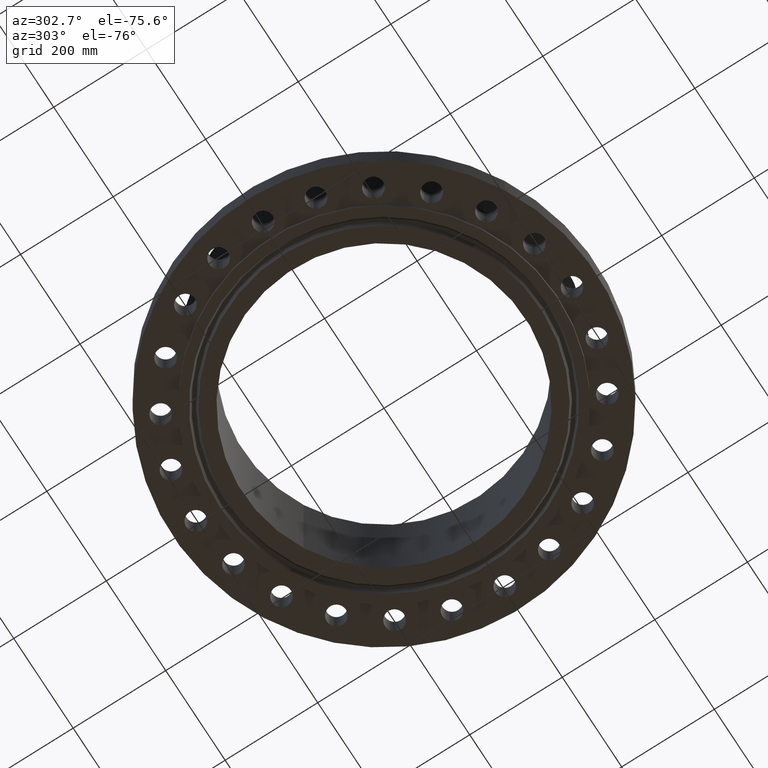
[diagram: clean part render]
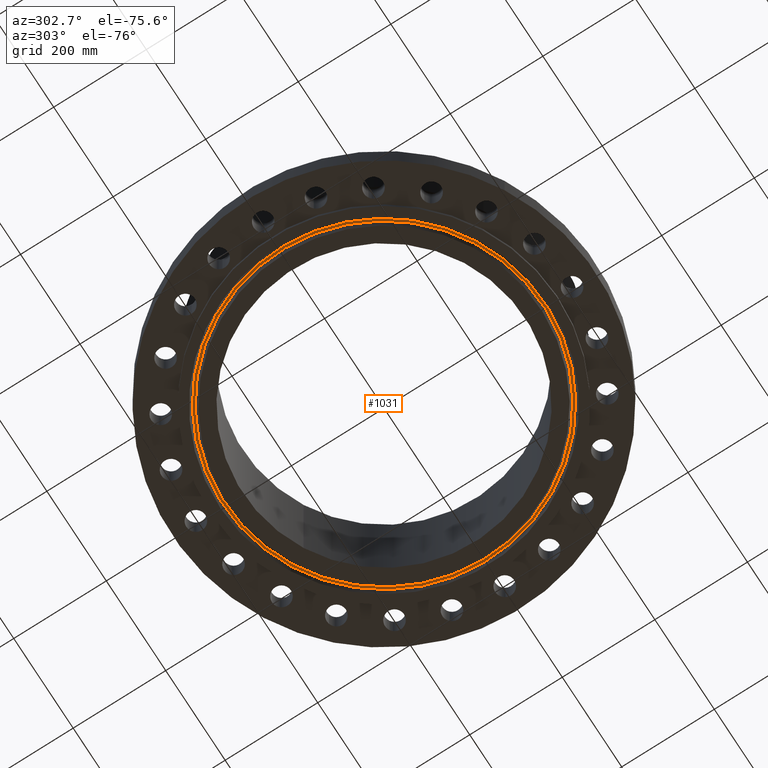
[diagram: same view with one face highlighted and labeled with its STEP entity id]
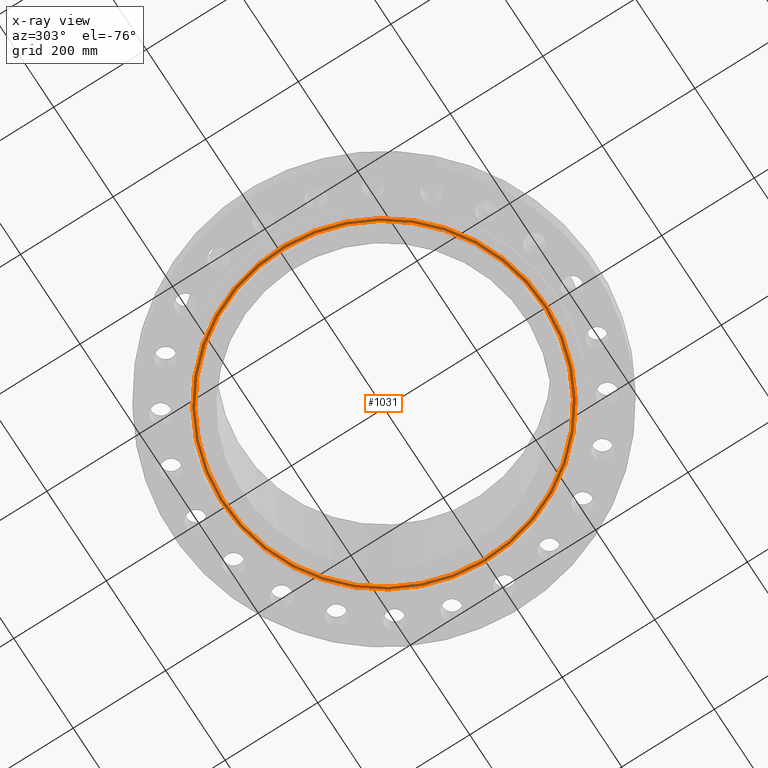
[diagram: x-ray of the same camera — body ghosted, the highlighted face saturated]
A machine part, auxiliary view. The second image highlights one B-rep face of the part: STEP entity #1031.
The next image is the same camera in x-ray: the body ghosted, the highlighted face saturated — about 0% of this face is hidden behind the body in this view.
In plain terms, the highlighted planar face has unit normal (0, 0, -1).
Its self-contained STEP definition (entity closure, byte-faithful):
#78=AXIS2_PLACEMENT_3D('Plane Axis2P3D',#75,#76,#77) ;
#980=AXIS2_PLACEMENT_3D('Circle Axis2P3D',#978,#979,$) ;
#999=AXIS2_PLACEMENT_3D('Circle Axis2P3D',#997,#998,$) ;
#1011=AXIS2_PLACEMENT_3D('Circle Axis2P3D',#1009,#1010,$) ;
#1020=AXIS2_PLACEMENT_3D('Circle Axis2P3D',#1018,#1019,$) ;
#75=CARTESIAN_POINT('Axis2P3D Location',(0.,13.5246187599,0.)) ;
#975=CARTESIAN_POINT('Vertex',(-6.48404763339,-11.8689695799,6.73127345639E-016)) ;
#978=CARTESIAN_POINT('Axis2P3D Location',(0.,0.,6.73127345639E-016)) ;
#982=CARTESIAN_POINT('Vertex',(6.48404763339,11.8689695799,6.73127345639E-016)) ;
#997=CARTESIAN_POINT('Axis2P3D Location',(0.,0.,6.73127345639E-016)) ;
#1009=CARTESIAN_POINT('Axis2P3D Location',(0.,0.,0.)) ;
#1013=CARTESIAN_POINT('Vertex',(-6.58029829363,-12.0451552317,2.01064012334E-016)) ;
#1015=CARTESIAN_POINT('Vertex',(6.58029829363,12.0451552317,2.01064012334E-016)) ;
#1018=CARTESIAN_POINT('Axis2P3D Location',(0.,0.,0.)) ;
#76=DIRECTION('Axis2P3D Direction',(0.,0.,-0.0393700787402)) ;
#77=DIRECTION('Axis2P3D XDirection',(0.0393700787402,0.,0.)) ;
#979=DIRECTION('Axis2P3D Direction',(0.,0.,-0.0393700787402)) ;
#998=DIRECTION('Axis2P3D Direction',(0.,0.,-0.0393700787402)) ;
#1010=DIRECTION('Axis2P3D Direction',(0.,0.,-0.0393700787402)) ;
#1019=DIRECTION('Axis2P3D Direction',(0.,0.,-0.0393700787402)) ;
#1024=ORIENTED_EDGE('',*,*,#1017,.T.) ;
#1025=ORIENTED_EDGE('',*,*,#1022,.T.) ;
#1028=ORIENTED_EDGE('',*,*,#1001,.F.) ;
#1029=ORIENTED_EDGE('',*,*,#984,.F.) ;
#1030=FACE_BOUND('',#1027,.T.) ;
#1031=ADVANCED_FACE('PartBody',(#1026,#1030),#79,.T.) ;
#981=CIRCLE('generated circle',#980,13.5246187599) ;
#1000=CIRCLE('generated circle',#999,13.5246187599) ;
#1012=CIRCLE('generated circle',#1011,13.7253812402) ;
#1021=CIRCLE('generated circle',#1020,13.7253812402) ;
#984=EDGE_CURVE('',#976,#983,#981,.T.) ;
#1001=EDGE_CURVE('',#983,#976,#1000,.T.) ;
#1017=EDGE_CURVE('',#1014,#1016,#1012,.T.) ;
#1022=EDGE_CURVE('',#1016,#1014,#1021,.T.) ;
#1023=EDGE_LOOP('',(#1024,#1025)) ;
#1027=EDGE_LOOP('',(#1028,#1029)) ;
#1026=FACE_OUTER_BOUND('',#1023,.T.) ;
#79=PLANE('',#78) ;
#976=VERTEX_POINT('',#975) ;
#983=VERTEX_POINT('',#982) ;
#1014=VERTEX_POINT('',#1013) ;
#1016=VERTEX_POINT('',#1015) ;